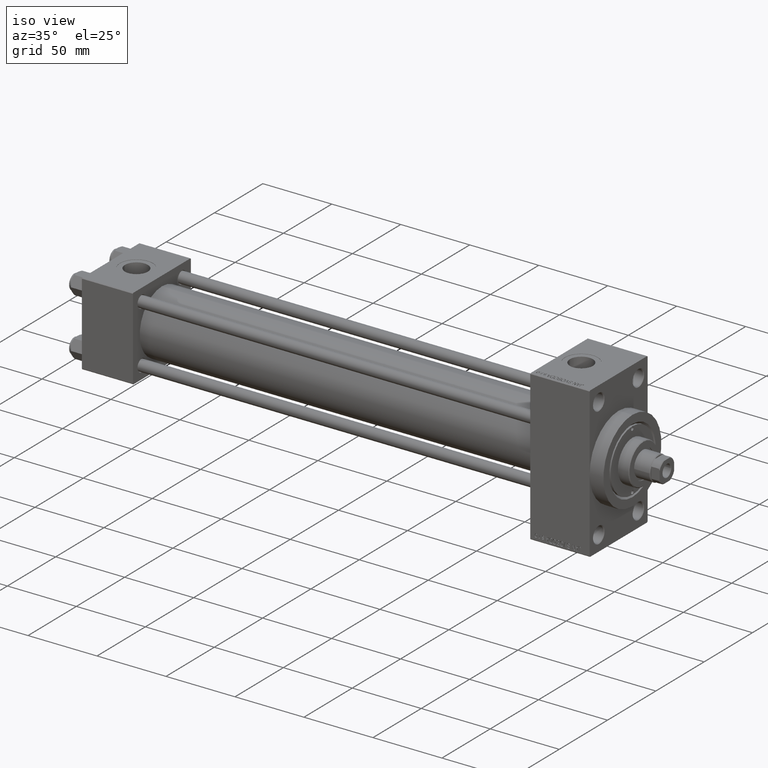
[diagram: clean part render]
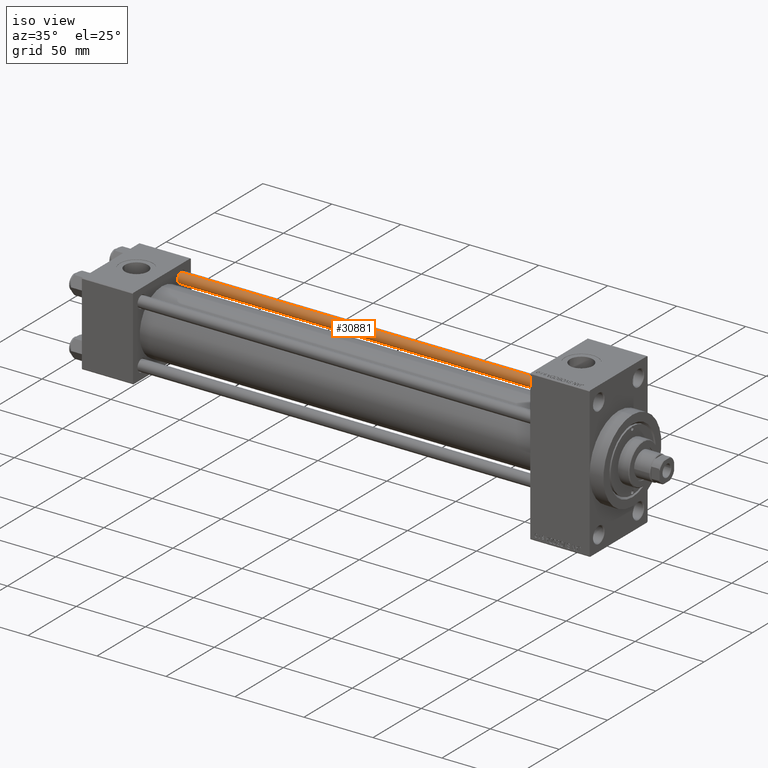
[diagram: same view with one face highlighted and labeled with its STEP entity id]
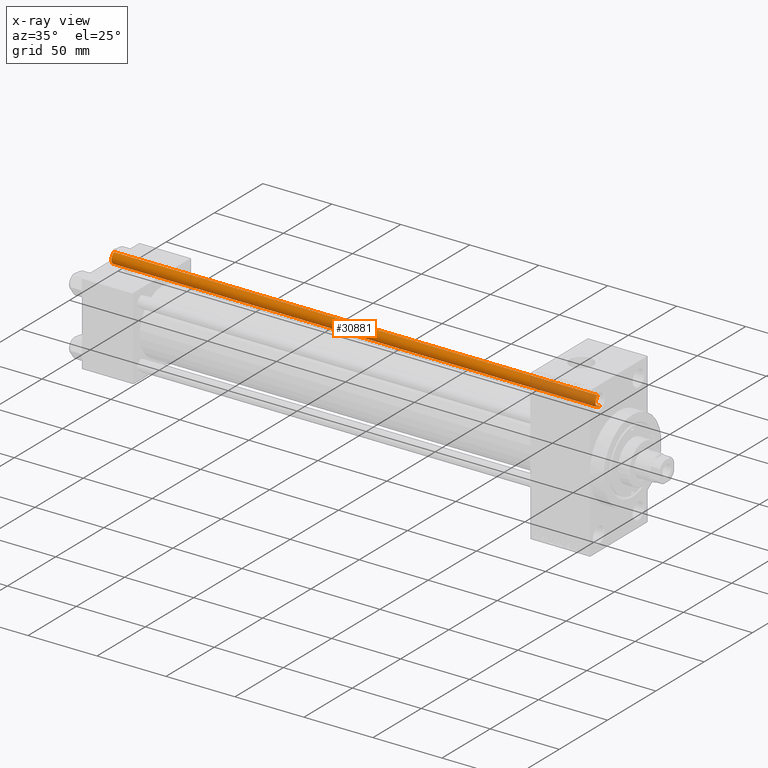
[diagram: x-ray of the same camera — body ghosted, the highlighted face saturated]
A machine part, iso view. The second image highlights one B-rep face of the part: STEP entity #30881.
The next image is the same camera in x-ray: the body ghosted, the highlighted face saturated — about 13% of this face is hidden behind the body in this view.
In plain terms, the highlighted cylindrical surface (edge-blend (fillet) strip) has radius 4 mm, axis along (-1, -0, 0).
Its self-contained STEP definition (entity closure, byte-faithful):
#576 = AXIS2_PLACEMENT_3D ( 'NONE', #19473, #48560, #29663 ) ;
#627 = CARTESIAN_POINT ( 'NONE',  ( 0.000000000000000000, 0.000000000000000000, 0.5000000000000004441 ) ) ;
#2284 = DIRECTION ( 'NONE',  ( 0.000000000000000000, 0.000000000000000000, -1.000000000000000000 ) ) ;
#2324 = CIRCLE ( 'NONE', #3872, 4.000000000000000000 ) ;
#3569 = LINE ( 'NONE', #19441, #12898 ) ;
#3872 = AXIS2_PLACEMENT_3D ( 'NONE', #627, #5097, #43145 ) ;
#5097 = DIRECTION ( 'NONE',  ( -0.000000000000000000, -0.000000000000000000, 1.000000000000000000 ) ) ;
#7296 = ORIENTED_EDGE ( 'NONE', *, *, #26883, .T. ) ;
#7525 = FACE_OUTER_BOUND ( 'NONE', #24588, .T. ) ;
#12089 = CARTESIAN_POINT ( 'NONE',  ( -4.000000000000000000, 0.000000000000000000, 352.0000000000000000 ) ) ;
#12898 = VECTOR ( 'NONE', #34580, 1000.000000000000000 ) ;
#13616 = CIRCLE ( 'NONE', #43776, 4.000000000000000000 ) ;
#13737 = DIRECTION ( 'NONE',  ( 1.000000000000000000, 0.000000000000000000, 0.000000000000000000 ) ) ;
#13969 = CARTESIAN_POINT ( 'NONE',  ( 0.000000000000000000, 0.000000000000000000, 351.5000000000000000 ) ) ;
#18110 = CARTESIAN_POINT ( 'NONE',  ( 4.000000000000000000, 4.898587196589412829E-16, 351.5000000000000000 ) ) ;
#18734 = CYLINDRICAL_SURFACE ( 'NONE', #576, 4.000000000000000000 ) ;
#19441 = CARTESIAN_POINT ( 'NONE',  ( 4.000000000000000000, 4.898587196589412829E-16, 352.0000000000000000 ) ) ;
#19473 = CARTESIAN_POINT ( 'NONE',  ( 0.000000000000000000, 0.000000000000000000, 352.0000000000000000 ) ) ;
#19675 = ORIENTED_EDGE ( 'NONE', *, *, #24767, .T. ) ;
#21425 = VECTOR ( 'NONE', #27252, 1000.000000000000000 ) ;
#24588 = EDGE_LOOP ( 'NONE', ( #27422, #25253, #7296, #19675 ) ) ;
#24767 = EDGE_CURVE ( 'NONE', #29187, #43975, #2324, .T. ) ;
#25253 = ORIENTED_EDGE ( 'NONE', *, *, #44133, .T. ) ;
#26883 = EDGE_CURVE ( 'NONE', #32776, #29187, #30738, .T. ) ;
#27252 = DIRECTION ( 'NONE',  ( -0.000000000000000000, -0.000000000000000000, -1.000000000000000000 ) ) ;
#27422 = ORIENTED_EDGE ( 'NONE', *, *, #46250, .F. ) ;
#28767 = VERTEX_POINT ( 'NONE', #18110 ) ;
#29187 = VERTEX_POINT ( 'NONE', #30709 ) ;
#29663 = DIRECTION ( 'NONE',  ( -1.000000000000000000, 0.000000000000000000, 0.000000000000000000 ) ) ;
#29906 = CARTESIAN_POINT ( 'NONE',  ( 4.000000000000000000, 4.898587196589412829E-16, 0.5000000000000004441 ) ) ;
#30709 = CARTESIAN_POINT ( 'NONE',  ( -4.000000000000000000, 0.000000000000000000, 0.5000000000000004441 ) ) ;
#30738 = LINE ( 'NONE', #12089, #21425 ) ;
#30881 = ADVANCED_FACE ( 'NONE', ( #7525 ), #18734, .T. ) ;
#32776 = VERTEX_POINT ( 'NONE', #43942 ) ;
#34580 = DIRECTION ( 'NONE',  ( -0.000000000000000000, -0.000000000000000000, -1.000000000000000000 ) ) ;
#43145 = DIRECTION ( 'NONE',  ( 1.000000000000000000, 0.000000000000000000, 0.000000000000000000 ) ) ;
#43776 = AXIS2_PLACEMENT_3D ( 'NONE', #13969, #2284, #13737 ) ;
#43942 = CARTESIAN_POINT ( 'NONE',  ( -4.000000000000000000, 0.000000000000000000, 351.5000000000000000 ) ) ;
#43975 = VERTEX_POINT ( 'NONE', #29906 ) ;
#44133 = EDGE_CURVE ( 'NONE', #28767, #32776, #13616, .T. ) ;
#46250 = EDGE_CURVE ( 'NONE', #28767, #43975, #3569, .T. ) ;
#48560 = DIRECTION ( 'NONE',  ( -0.000000000000000000, -0.000000000000000000, -1.000000000000000000 ) ) ;